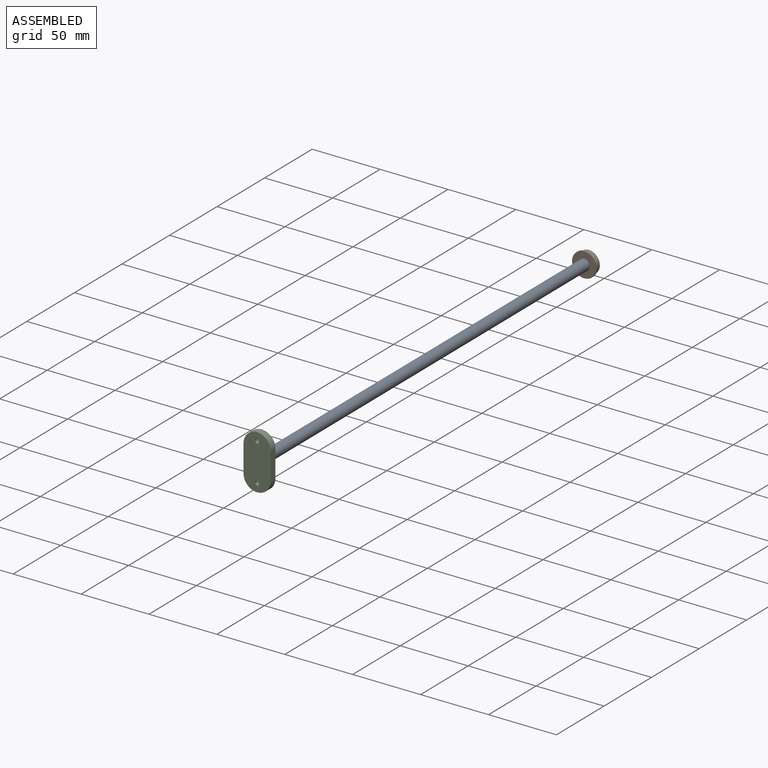
[diagram: assembled view]
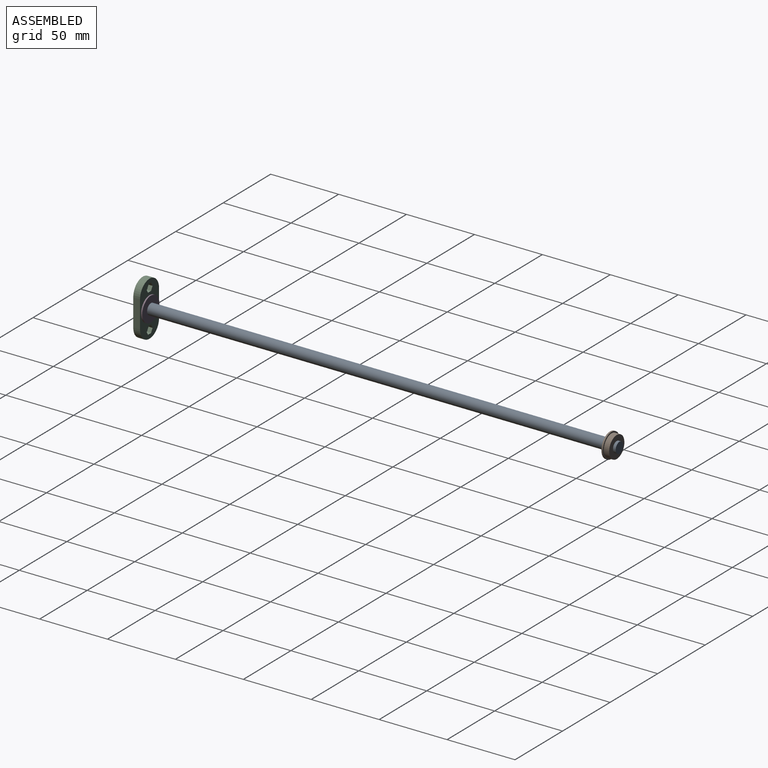
[diagram: assembled view, second angle]
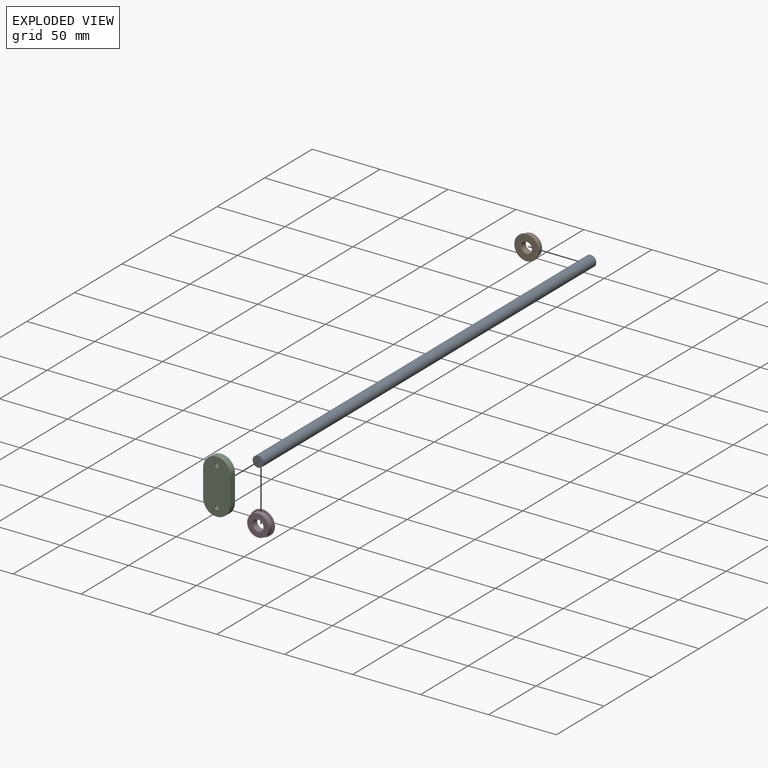
[diagram: exploded view]
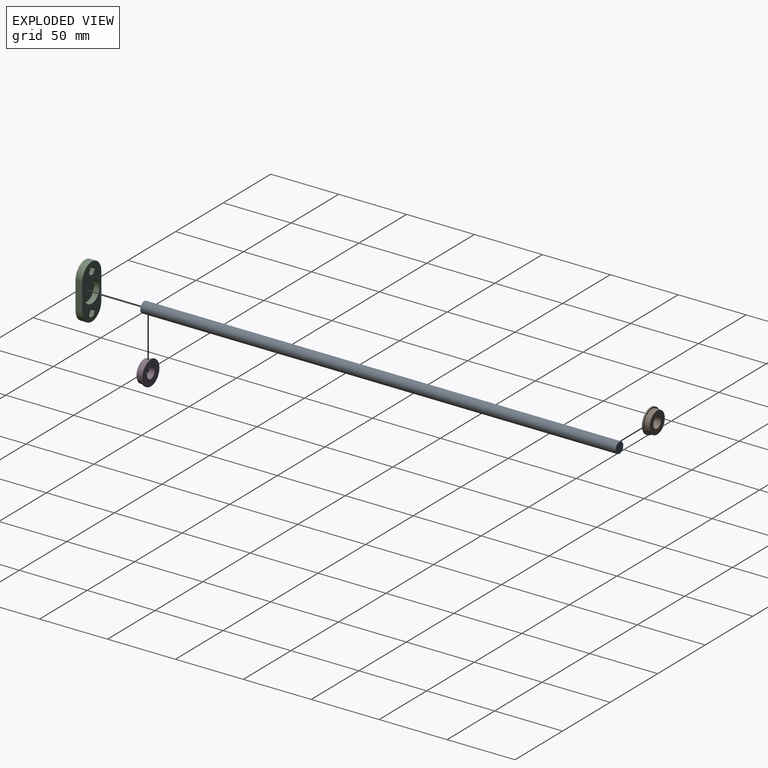
[diagram: exploded view, second angle]
ASSEMBLY  parts=4 mates=2
PART A: 3 faces, bbox 8x8x350 mm
  f0: cylinder r=4mm len=350mm, axis (0,0,-1), area 8796.5mm2, adj f1,f2
  f1: plane 8x8mm, normal (0,0,1), area 50.3mm2, adj f0
  f2: plane 8x8mm, normal (0,0,-1), area 50.3mm2, adj f0
PART B: 6 faces, bbox 18x18x5 mm
  f0: cylinder r=9mm len=18mm, axis (0,0,-1), area 62.2mm2, adj f1,f2
  f1: plane 18x18mm, normal (0,0,1), area 53.4mm2, adj f0,f3
  f2: plane 18x18mm, normal (0,0,-1), area 204.2mm2, adj f0,f5
  f3: cylinder r=8mm len=16mm, axis (0,0,-1), area 196mm2, adj f1,f4
  f4: plane 16x16mm, normal (0,0,1), area 150.8mm2, adj f3,f5
  f5: cylinder r=4mm len=8mm, axis (0,0,1), area 125.7mm2, adj f2,f4
PART C: 24 faces, bbox 20x40x5 mm
  f0: plane 20x5mm, normal (1,0,0), area 100mm2, adj f2,f3,f6,f7
  f1: plane 20x5mm, normal (-1,0,0), area 100mm2, adj f2,f3,f6,f7
  f2: plane 40x20mm, normal (0,0,1), area 459.7mm2, adj f0,f1,f4,f6,f7,f8,f9,f10
  f3: plane 40x20mm, normal (0,0,-1), area 700mm2, adj f0,f1,f6,f7,f22,f23
  f4: cylinder r=8mm len=16mm, axis (0,0,1), area 201.1mm2, adj f2,f5
  f5: plane 16x16mm, normal (0,0,1), area 201.1mm2, adj f4
  f6: cylinder r=10mm len=20mm, axis (0,0,-1), area 157.1mm2, adj f0,f1,f2,f3
  f7: cylinder r=10mm len=20mm, axis (0,0,-1), area 157.1mm2, adj f0,f1,f2,f3
  f8: plane 3x2.78mm, normal (0.87,0.5,0), area 9.6mm2, adj f2,f9,f13,f14
  f9: plane 3.2x3mm, normal (0,1,0), area 9.6mm2, adj f2,f8,f10,f14
  f10: plane 3x2.78mm, normal (-0.87,0.5,0), area 9.6mm2, adj f2,f9,f11,f14
  f11: plane 3x2.78mm, normal (-0.87,-0.5,0), area 9.6mm2, adj f2,f10,f12,f14
  f12: plane 3.2x3mm, normal (0,-1,0), area 9.6mm2, adj f2,f11,f13,f14
  f13: plane 3x2.78mm, normal (0.87,-0.5,0), area 9.6mm2, adj f2,f8,f12,f14
  f14: plane 6.41x5.55mm, normal (0,0,1), area 19.6mm2, adj f8,f9,f10,f11,f12,f13,f23
  f15: plane 3x2.78mm, normal (-0.87,-0.5,0), area 9.6mm2, adj f2,f16,f20,f21
  f16: plane 3.2x3mm, normal (0,-1,0), area 9.6mm2, adj f2,f15,f17,f21
  f17: plane 3x2.78mm, normal (0.87,-0.5,0), area 9.6mm2, adj f2,f16,f18,f21
  f18: plane 3x2.78mm, normal (0.87,0.5,0), area 9.6mm2, adj f2,f17,f19,f21
  f19: plane 3.2x3mm, normal (0,1,0), area 9.6mm2, adj f2,f18,f20,f21
  f20: plane 3x2.78mm, normal (-0.87,0.5,0), area 9.6mm2, adj f2,f15,f19,f21
  f21: plane 6.41x5.55mm, normal (0,0,1), area 19.6mm2, adj f15,f16,f17,f18,f19,f20,f22
  f22: cylinder r=1.5mm len=3mm, axis (0,0,1), area 18.8mm2, adj f3,f21
  f23: cylinder r=1.5mm len=3mm, axis (0,0,1), area 18.8mm2, adj f3,f14
PART D: same geometry as B
PLACE A rot(axis=(-1,0,0),90deg) t=(-1.03,-83.83,186.25)mm
PLACE B rot(axis=(-1,0,0),90deg) t=(-1.03,259.17,186.25)mm
PLACE C rot(axis=(-1,0,0),90deg) t=(-1.03,-84.83,186.25)mm
PLACE D rot(axis=(1,0,0),90deg) t=(-1.03,-78.83,186.25)mm
MATE planar A.f0 <-> D.f5  axis (0,-1,0) through (-1.03,-83.83,186.25)mm
MATE planar D.f3 <-> C.f4  axis (0,-1,0) through (-1.03,-83.83,186.25)mm
